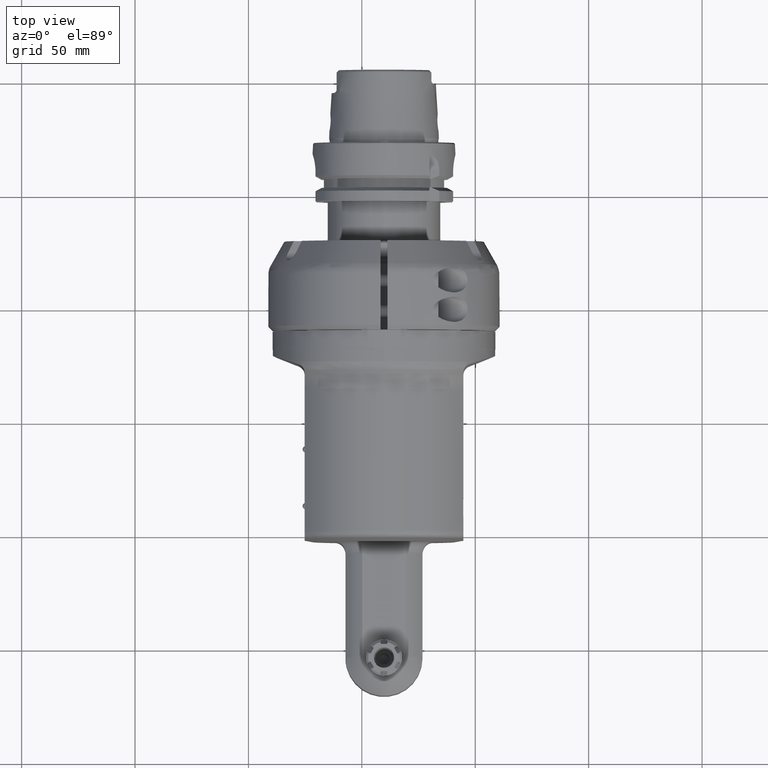
[diagram: clean part render]
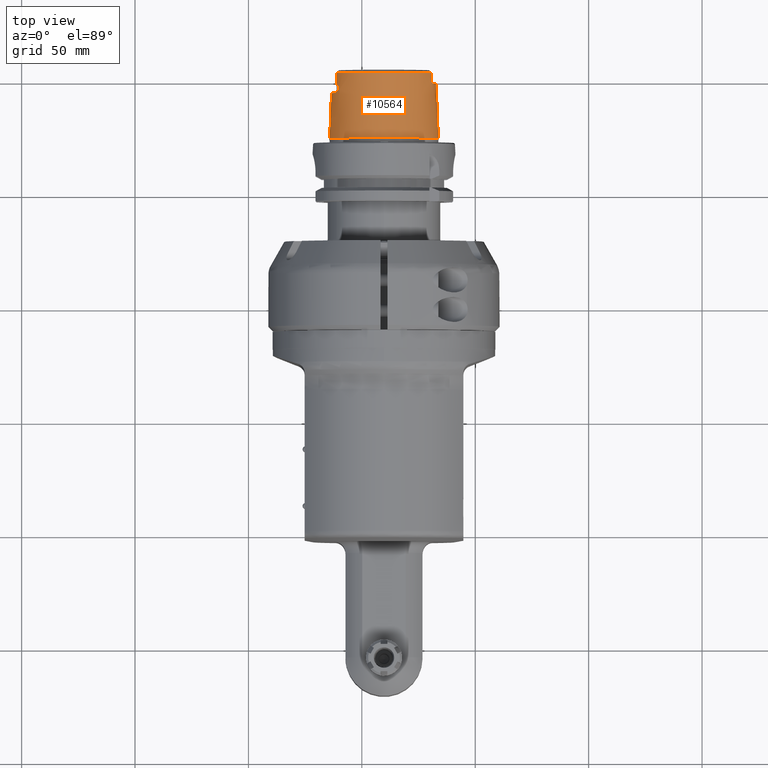
[diagram: same view with one face highlighted and labeled with its STEP entity id]
A machine part, top view. The second image highlights one B-rep face of the part: STEP entity #10564.
In plain terms, the highlighted conical surface has half-angle 2.868 deg.
Its self-contained STEP definition (entity closure, byte-faithful):
#113=CONICAL_SURFACE('',#11564,23.49739340079,0.0500570901447486);
#314=(
BOUNDED_CURVE()
B_SPLINE_CURVE(2,(#18491,#18492,#18493),.UNSPECIFIED.,.F.,.F.)
B_SPLINE_CURVE_WITH_KNOTS((3,3),(1.86693789051421,2.5252025093279),
 .UNSPECIFIED.)
CURVE()
GEOMETRIC_REPRESENTATION_ITEM()
RATIONAL_B_SPLINE_CURVE((1.02439092202946,1.02616919741191,1.02616919750134))
REPRESENTATION_ITEM('')
);
#315=(
BOUNDED_CURVE()
B_SPLINE_CURVE(2,(#18560,#18561,#18562),.UNSPECIFIED.,.F.,.F.)
B_SPLINE_CURVE_WITH_KNOTS((3,3),(2.52520257553613,3.18346719434885),
 .UNSPECIFIED.)
CURVE()
GEOMETRIC_REPRESENTATION_ITEM()
RATIONAL_B_SPLINE_CURVE((1.02616919750134,1.0261691974119,1.02439092202946))
REPRESENTATION_ITEM('')
);
#463=B_SPLINE_CURVE_WITH_KNOTS('',3,(#18420,#18421,#18422,#18423,#18424,
#18425,#18426,#18427),.UNSPECIFIED.,.F.,.F.,(4,2,2,4),(1.87852144760714,
1.96332966499537,2.14651647101209,2.20196364531662),.UNSPECIFIED.);
#464=B_SPLINE_CURVE_WITH_KNOTS('',3,(#18429,#18430,#18431,#18432,#18433,
#18434,#18435,#18436,#18437,#18438,#18439,#18440,#18441,#18442),
 .UNSPECIFIED.,.F.,.F.,(4,2,2,2,2,2,4),(0.648088302085378,0.67504823879193,
0.706405860352622,0.747031442334294,0.813706573923428,0.931756672705542,
0.968140813905552),.UNSPECIFIED.);
#465=B_SPLINE_CURVE_WITH_KNOTS('',3,(#18446,#18447,#18448,#18449,#18450,
#18451,#18452,#18453,#18454,#18455,#18456,#18457,#18458,#18459),
 .UNSPECIFIED.,.F.,.F.,(4,2,2,2,2,2,4),(0.250897982794745,0.32289928639896,
0.451677279406398,0.504038531696657,0.537850831835839,0.567600566613487,
0.5820221192563),.UNSPECIFIED.);
#466=B_SPLINE_CURVE_WITH_KNOTS('',3,(#18461,#18462,#18463,#18464,#18465,
#18466,#18467,#18468),.UNSPECIFIED.,.F.,.F.,(4,2,2,4),(1.04367366398559,
1.09912083762025,1.28230764389029,1.36711586171919),.UNSPECIFIED.);
#467=B_SPLINE_CURVE_WITH_KNOTS('',3,(#18472,#18473,#18474,#18475,#18476,
#18477,#18478,#18479,#18480,#18481,#18482,#18483,#18484,#18485,#18486,#18487,
#18488,#18489),.UNSPECIFIED.,.F.,.F.,(4,2,2,2,2,2,2,2,4),(1.62281865268316,
1.63031260903777,1.63780656539237,1.65279447810159,1.71646866782222,1.78014285754286,
1.96332966286606,2.14651646818926,2.20196364304312),.UNSPECIFIED.);
#468=B_SPLINE_CURVE_WITH_KNOTS('',3,(#18495,#18496,#18497,#18498,#18499,
#18500,#18501,#18502,#18503,#18504,#18505,#18506,#18507,#18508,#18509,#18510,
#18511,#18512,#18513),.UNSPECIFIED.,.F.,.F.,(4,2,2,2,2,2,3,2,4),(0.591686858486119,
0.711318405574479,0.753394480811399,0.769620085407919,0.779298074344639,
0.784137068813,0.78897606328136,0.793827590149413,0.796896752134967),
 .UNSPECIFIED.);
#469=B_SPLINE_CURVE_WITH_KNOTS('',3,(#18515,#18516,#18517,#18518,#18519,
#18520,#18521,#18522,#18523,#18524,#18525,#18526),.UNSPECIFIED.,.F.,.F.,
(4,2,2,2,2,4),(-1.35810253274609,-1.33001864997158,-1.27929112228705,-1.22120744000346,
-1.19655389716661,-1.18646391721583),.UNSPECIFIED.);
#470=B_SPLINE_CURVE_WITH_KNOTS('',3,(#18530,#18531,#18532,#18533,#18534,
#18535,#18536,#18537,#18538,#18539),.UNSPECIFIED.,.F.,.F.,(4,2,2,2,4),(-0.500911046831581,
-0.481998817135151,-0.442781745818096,-0.333902719664991,-0.278648797669768),
 .UNSPECIFIED.);
#471=B_SPLINE_CURVE_WITH_KNOTS('',3,(#18541,#18542,#18543,#18544,#18545,
#18546,#18547,#18548,#18549,#18550,#18551,#18552,#18553,#18554,#18555,#18556,
#18557,#18558),.UNSPECIFIED.,.F.,.F.,(4,2,2,2,2,2,2,2,4),(0.386476945536789,
0.389546107522341,0.394397634390394,0.399236628858755,0.404075623327115,
0.413753612263837,0.429979216860358,0.472055292097276,0.591686839185636),
 .UNSPECIFIED.);
#472=B_SPLINE_CURVE_WITH_KNOTS('',3,(#18564,#18565,#18566,#18567,#18568,
#18569,#18570,#18571,#18572,#18573,#18574,#18575,#18576,#18577,#18578,#18579,
#18580,#18581),.UNSPECIFIED.,.F.,.F.,(4,2,2,2,2,2,2,2,4),(1.04367366561104,
1.09912083861657,1.2823076446389,1.46549445066122,1.5291686406059,1.59284283055058,
1.60783074329144,1.61532469966187,1.6228186560323),.UNSPECIFIED.);
#473=B_SPLINE_CURVE_WITH_KNOTS('',3,(#18585,#18586,#18587,#18588,#18589,
#18590,#18591,#18592,#18593,#18594,#18595,#18596,#18597,#18598,#18599,#18600,
#18601,#18602,#18603),.UNSPECIFIED.,.F.,.F.,(4,2,2,2,3,2,2,2,4),(-0.56247523473426,
-0.421758779612593,-0.281042324490925,-0.140521162245463,0.,0.142680728235708,
0.285361456471416,0.427838019281762,0.570314582092107),.UNSPECIFIED.);
#474=B_SPLINE_CURVE_WITH_KNOTS('',3,(#18604,#18605,#18606,#18607,#18608,
#18609,#18610,#18611,#18612,#18613,#18614,#18615,#18616,#18617,#18618,#18619,
#18620,#18621),.UNSPECIFIED.,.F.,.F.,(4,2,2,2,2,2,2,2,4),(0.570314582092107,
0.712791144902453,0.855267707712798,0.997948435948506,1.14062916418421,
1.28115032642968,1.42167148867514,1.56238794379681,1.70310439891847),
 .UNSPECIFIED.);
#475=B_SPLINE_CURVE_WITH_KNOTS('',3,(#18623,#18624,#18625,#18626,#18627,
#18628,#18629,#18630,#18631,#18632,#18633,#18634,#18635,#18636,#18637,#18638,
#18639,#18640,#18641,#18642,#18643,#18644,#18645,#18646,#18647,#18648,#18649,
#18650,#18651,#18652,#18653,#18654,#18655,#18656),.UNSPECIFIED.,.T.,.F.,
(4,2,2,2,2,2,2,2,2,2,2,2,2,2,2,2,4),(-2.26557963365273,-2.12505847140727,
-1.98453730916181,-1.84382085404014,-1.70310439891847,-1.56238794379681,
-1.42167148867514,-1.28115032642968,-1.14062916418421,-0.997948435948507,
-0.855267707712798,-0.712791144902453,-0.570314582092107,-0.427838019281762,
-0.285361456471416,-0.142680728235708,0.),.UNSPECIFIED.);
#601=FACE_BOUND('',#2340,.T.);
#602=FACE_BOUND('',#2341,.T.);
#941=CIRCLE('',#11562,24.22021898401);
#942=CIRCLE('',#11563,24.22021898401);
#943=CIRCLE('',#11565,22.77456781756);
#944=CIRCLE('',#11566,23.01805084955);
#945=CIRCLE('',#11567,22.77456781756);
#946=CIRCLE('',#11568,23.21844661614);
#947=CIRCLE('',#11569,22.77456781756);
#1659=FACE_OUTER_BOUND('',#2339,.T.);
#2339=EDGE_LOOP('',(#8666,#8667,#8668,#8669,#8670,#8671,#8672,#8673,#8674,
#8675,#8676,#8677,#8678,#8679,#8680,#8681,#8682,#8683,#8684,#8685,#8686));
#2340=EDGE_LOOP('',(#8687,#8688));
#2341=EDGE_LOOP('',(#8689));
#3082=LINE('',#18416,#3812);
#3812=VECTOR('',#13870,23.49739340079);
#4747=VERTEX_POINT('',#18409);
#4748=VERTEX_POINT('',#18410);
#4749=VERTEX_POINT('',#18415);
#4750=VERTEX_POINT('',#18417);
#4751=VERTEX_POINT('',#18419);
#4752=VERTEX_POINT('',#18428);
#4753=VERTEX_POINT('',#18443);
#4754=VERTEX_POINT('',#18445);
#4755=VERTEX_POINT('',#18460);
#4756=VERTEX_POINT('',#18469);
#4757=VERTEX_POINT('',#18471);
#4758=VERTEX_POINT('',#18490);
#4759=VERTEX_POINT('',#18494);
#4760=VERTEX_POINT('',#18514);
#4761=VERTEX_POINT('',#18527);
#4762=VERTEX_POINT('',#18529);
#4763=VERTEX_POINT('',#18540);
#4764=VERTEX_POINT('',#18559);
#4765=VERTEX_POINT('',#18563);
#4766=VERTEX_POINT('',#18583);
#4767=VERTEX_POINT('',#18584);
#4768=VERTEX_POINT('',#18622);
#6117=EDGE_CURVE('',#4747,#4748,#941,.T.);
#6118=EDGE_CURVE('',#4748,#4747,#942,.T.);
#6120=EDGE_CURVE('',#4747,#4749,#3082,.T.);
#6121=EDGE_CURVE('',#4749,#4750,#943,.T.);
#6122=EDGE_CURVE('',#4751,#4750,#463,.T.);
#6123=EDGE_CURVE('',#4751,#4752,#464,.T.);
#6124=EDGE_CURVE('',#4753,#4752,#944,.T.);
#6125=EDGE_CURVE('',#4753,#4754,#465,.T.);
#6126=EDGE_CURVE('',#4755,#4754,#466,.T.);
#6127=EDGE_CURVE('',#4756,#4755,#945,.T.);
#6128=EDGE_CURVE('',#4757,#4756,#467,.T.);
#6129=EDGE_CURVE('',#4758,#4757,#314,.T.);
#6130=EDGE_CURVE('',#4759,#4758,#468,.T.);
#6131=EDGE_CURVE('',#4760,#4759,#469,.T.);
#6132=EDGE_CURVE('',#4761,#4760,#946,.T.);
#6133=EDGE_CURVE('',#4762,#4761,#470,.T.);
#6134=EDGE_CURVE('',#4763,#4762,#471,.T.);
#6135=EDGE_CURVE('',#4764,#4763,#315,.T.);
#6136=EDGE_CURVE('',#4765,#4764,#472,.T.);
#6137=EDGE_CURVE('',#4765,#4749,#947,.T.);
#6138=EDGE_CURVE('',#4766,#4767,#473,.T.);
#6139=EDGE_CURVE('',#4767,#4766,#474,.T.);
#6140=EDGE_CURVE('',#4768,#4768,#475,.T.);
#8666=ORIENTED_EDGE('',*,*,#6117,.T.);
#8667=ORIENTED_EDGE('',*,*,#6118,.T.);
#8668=ORIENTED_EDGE('',*,*,#6120,.T.);
#8669=ORIENTED_EDGE('',*,*,#6121,.T.);
#8670=ORIENTED_EDGE('',*,*,#6122,.F.);
#8671=ORIENTED_EDGE('',*,*,#6123,.T.);
#8672=ORIENTED_EDGE('',*,*,#6124,.F.);
#8673=ORIENTED_EDGE('',*,*,#6125,.T.);
#8674=ORIENTED_EDGE('',*,*,#6126,.F.);
#8675=ORIENTED_EDGE('',*,*,#6127,.F.);
#8676=ORIENTED_EDGE('',*,*,#6128,.F.);
#8677=ORIENTED_EDGE('',*,*,#6129,.F.);
#8678=ORIENTED_EDGE('',*,*,#6130,.F.);
#8679=ORIENTED_EDGE('',*,*,#6131,.F.);
#8680=ORIENTED_EDGE('',*,*,#6132,.F.);
#8681=ORIENTED_EDGE('',*,*,#6133,.F.);
#8682=ORIENTED_EDGE('',*,*,#6134,.F.);
#8683=ORIENTED_EDGE('',*,*,#6135,.F.);
#8684=ORIENTED_EDGE('',*,*,#6136,.F.);
#8685=ORIENTED_EDGE('',*,*,#6137,.T.);
#8686=ORIENTED_EDGE('',*,*,#6120,.F.);
#8687=ORIENTED_EDGE('',*,*,#6138,.T.);
#8688=ORIENTED_EDGE('',*,*,#6139,.T.);
#8689=ORIENTED_EDGE('',*,*,#6140,.T.);
#10564=ADVANCED_FACE('',(#1659,#601,#602),#113,.T.);
#11562=AXIS2_PLACEMENT_3D('',#18411,#13863,#13864);
#11563=AXIS2_PLACEMENT_3D('',#18412,#13865,#13866);
#11564=AXIS2_PLACEMENT_3D('',#18414,#13868,#13869);
#11565=AXIS2_PLACEMENT_3D('',#18418,#13871,#13872);
#11566=AXIS2_PLACEMENT_3D('',#18444,#13873,#13874);
#11567=AXIS2_PLACEMENT_3D('',#18470,#13875,#13876);
#11568=AXIS2_PLACEMENT_3D('',#18528,#13877,#13878);
#11569=AXIS2_PLACEMENT_3D('',#18582,#13879,#13880);
#13863=DIRECTION('center_axis',(0.,1.,0.));
#13864=DIRECTION('ref_axis',(-0.707106781186547,0.,-0.707106781186547));
#13865=DIRECTION('center_axis',(0.,1.,0.));
#13866=DIRECTION('ref_axis',(-0.707106781186547,0.,-0.707106781186547));
#13868=DIRECTION('center_axis',(0.,-1.,0.));
#13869=DIRECTION('ref_axis',(0.707106781186548,0.,0.707106781186548));
#13870=DIRECTION('',(0.0353809278297194,0.998747405449354,0.0353809278297194));
#13871=DIRECTION('center_axis',(0.,-1.,0.));
#13872=DIRECTION('ref_axis',(-0.707106781186547,0.,-0.707106781186547));
#13873=DIRECTION('center_axis',(0.,1.,0.));
#13874=DIRECTION('ref_axis',(0.950655672568357,0.,0.310247952795186));
#13875=DIRECTION('center_axis',(0.,1.,0.));
#13876=DIRECTION('ref_axis',(0.,0.,1.));
#13877=DIRECTION('center_axis',(0.,1.,0.));
#13878=DIRECTION('ref_axis',(-0.94780590928591,0.,-0.318847860778003));
#13879=DIRECTION('center_axis',(0.,-1.,0.));
#13880=DIRECTION('ref_axis',(-0.707106781186547,0.,-0.707106781186547));
#18409=CARTESIAN_POINT('',(-17.12628108542,85.00412114642,-17.12628108542));
#18410=CARTESIAN_POINT('',(17.1262810854204,85.0041211464186,17.1262810854204));
#18411=CARTESIAN_POINT('Origin',(1.347113091385E-14,85.00412114642,0.));
#18412=CARTESIAN_POINT('Origin',(1.347113091385E-14,85.00412114642,0.));
#18414=CARTESIAN_POINT('Origin',(1.347113091385E-14,99.432082286,0.));
#18415=CARTESIAN_POINT('',(-16.1040513423943,113.860043425581,-16.1040513423943));
#18416=CARTESIAN_POINT('',(-16.6151662139066,99.432082286,-16.6151662139066));
#18417=CARTESIAN_POINT('',(20.86981835535,113.86004342558,-9.117654363463));
#18418=CARTESIAN_POINT('Origin',(1.347113091385E-14,113.86004342558,0.));
#18419=CARTESIAN_POINT('',(20.83290092553,110.5,-9.610775788882));
#18420=CARTESIAN_POINT('Ctrl Pts',(20.8329009255283,110.500000000002,-9.61077578889373));
#18421=CARTESIAN_POINT('Ctrl Pts',(20.8413724806425,110.783490428274,-9.55850786932113));
#18422=CARTESIAN_POINT('Ctrl Pts',(20.8478073405863,111.070248202706,-9.50986699995181));
#18423=CARTESIAN_POINT('Ctrl Pts',(20.8638217744841,111.9851565585,-9.36366646758571));
#18424=CARTESIAN_POINT('Ctrl Pts',(20.8685085877053,112.623343076142,-9.27459532051356));
#18425=CARTESIAN_POINT('Ctrl Pts',(20.8700624475187,113.466127053925,-9.16631082824764));
#18426=CARTESIAN_POINT('Ctrl Pts',(20.8700887194267,113.662743462984,-9.14172559906327));
#18427=CARTESIAN_POINT('Ctrl Pts',(20.8698183553477,113.860043425581,-9.11765436347179));
#18428=CARTESIAN_POINT('',(21.88224061159,109.,-7.141303153407));
#18429=CARTESIAN_POINT('Ctrl Pts',(20.8329009255283,110.500000000002,-9.61077578889374));
#18430=CARTESIAN_POINT('Ctrl Pts',(20.8314489924963,110.451412803024,-9.61973394568025));
#18431=CARTESIAN_POINT('Ctrl Pts',(20.8336401790429,110.403310110275,-9.62073721834895));
#18432=CARTESIAN_POINT('Ctrl Pts',(20.8464278881812,110.298560865748,-9.60554521151347));
#18433=CARTESIAN_POINT('Ctrl Pts',(20.8578578636761,110.245706969117,-9.58707640182997));
#18434=CARTESIAN_POINT('Ctrl Pts',(20.8893183107881,110.132799684012,-9.53199317457096));
#18435=CARTESIAN_POINT('Ctrl Pts',(20.9150585072333,110.060268786847,-9.48448009125569));
#18436=CARTESIAN_POINT('Ctrl Pts',(21.0151373924235,109.838647872012,-9.28874691392544));
#18437=CARTESIAN_POINT('Ctrl Pts',(21.0971469157375,109.698710144837,-9.11993002449012));
#18438=CARTESIAN_POINT('Ctrl Pts',(21.3346001590644,109.352193060079,-8.60152235861784));
#18439=CARTESIAN_POINT('Ctrl Pts',(21.5309104117373,109.129495595536,-8.1402860872223));
#18440=CARTESIAN_POINT('Ctrl Pts',(21.77828244444,109.013086935923,-7.45228581516806));
#18441=CARTESIAN_POINT('Ctrl Pts',(21.8323572224781,109.,-7.29415485282921));
#18442=CARTESIAN_POINT('Ctrl Pts',(21.8822406115908,109.,-7.14130315340726));
#18443=CARTESIAN_POINT('',(21.88224061159,109.,7.141303153408));
#18444=CARTESIAN_POINT('Origin',(1.347113091385E-14,109.,0.));
#18445=CARTESIAN_POINT('',(20.83290092553,110.50000000001,9.610775788879));
#18446=CARTESIAN_POINT('Ctrl Pts',(21.8822406115905,109.,7.14130315340816));
#18447=CARTESIAN_POINT('Ctrl Pts',(21.7933640580373,109.,7.41363694008591));
#18448=CARTESIAN_POINT('Ctrl Pts',(21.6957996581471,109.041612162461,7.68824455746597));
#18449=CARTESIAN_POINT('Ctrl Pts',(21.409444593117,109.255793077105,8.43441100564512));
#18450=CARTESIAN_POINT('Ctrl Pts',(21.2243799959674,109.495523502604,8.84932399272184));
#18451=CARTESIAN_POINT('Ctrl Pts',(21.0365866986543,109.806237291123,9.24395926600556));
#18452=CARTESIAN_POINT('Ctrl Pts',(20.9761032068554,109.916630584019,9.36659326279732));
#18453=CARTESIAN_POINT('Ctrl Pts',(20.8950552401853,110.114619990408,9.52178759584923));
#18454=CARTESIAN_POINT('Ctrl Pts',(20.8739760220774,110.182079648045,9.55958934574004));
#18455=CARTESIAN_POINT('Ctrl Pts',(20.8472940080879,110.295275231779,9.60408350993952));
#18456=CARTESIAN_POINT('Ctrl Pts',(20.8380106848695,110.351677199847,9.61743794135666));
#18457=CARTESIAN_POINT('Ctrl Pts',(20.8324598638865,110.441732781479,9.61869765129533));
#18458=CARTESIAN_POINT('Ctrl Pts',(20.8320321566572,110.470927692037,9.61613593125914));
#18459=CARTESIAN_POINT('Ctrl Pts',(20.8329009255286,110.500000000012,9.61077578889186));
#18460=CARTESIAN_POINT('',(20.86981835535,113.86004342558,9.117654363463));
#18461=CARTESIAN_POINT('Ctrl Pts',(20.8698183553477,113.860043425581,9.11765436347179));
#18462=CARTESIAN_POINT('Ctrl Pts',(20.8700887194234,113.662743465383,9.1417255987706));
#18463=CARTESIAN_POINT('Ctrl Pts',(20.8700624475193,113.466127058706,9.16631082764981));
#18464=CARTESIAN_POINT('Ctrl Pts',(20.8685085877441,112.62334308238,9.27459531965703));
#18465=CARTESIAN_POINT('Ctrl Pts',(20.8638217745454,111.985156563843,9.36366646679598));
#18466=CARTESIAN_POINT('Ctrl Pts',(20.8478073406529,111.070248205658,9.50986699945028));
#18467=CARTESIAN_POINT('Ctrl Pts',(20.8413724806862,110.78349042974,9.55850786905096));
#18468=CARTESIAN_POINT('Ctrl Pts',(20.8329009255286,110.500000000012,9.61077578889186));
#18469=CARTESIAN_POINT('',(-20.86981835533,113.86004342558,9.117654363498));
#18470=CARTESIAN_POINT('Origin',(1.347113091385E-14,113.86004342558,0.));
#18471=CARTESIAN_POINT('',(-20.55704259638,108.09828716012,10.45563865919));
#18472=CARTESIAN_POINT('Ctrl Pts',(-20.5570425901344,108.098287160182,10.4556386714692));
#18473=CARTESIAN_POINT('Ctrl Pts',(-20.5683671261878,108.098287162269,10.433373271905));
#18474=CARTESIAN_POINT('Ctrl Pts',(-20.5788186542378,108.103942557601,10.4121101512896));
#18475=CARTESIAN_POINT('Ctrl Pts',(-20.5981622584297,108.123292714809,10.3716348829625));
#18476=CARTESIAN_POINT('Ctrl Pts',(-20.6070594656734,108.13696673309,10.3524152746639));
#18477=CARTESIAN_POINT('Ctrl Pts',(-20.6315611276163,108.185669135694,10.2980927518617));
#18478=CARTESIAN_POINT('Ctrl Pts',(-20.6450434356398,108.22812725655,10.2662245706467));
#18479=CARTESIAN_POINT('Ctrl Pts',(-20.7016700091883,108.443440630208,10.1277106806721));
#18480=CARTESIAN_POINT('Ctrl Pts',(-20.7253784620132,108.658216249338,10.0539998399404));
#18481=CARTESIAN_POINT('Ctrl Pts',(-20.7668254275143,109.096251093511,9.91728957146815));
#18482=CARTESIAN_POINT('Ctrl Pts',(-20.7815789717773,109.321519834535,9.85990522650072));
#18483=CARTESIAN_POINT('Ctrl Pts',(-20.8259087989342,110.121432468118,9.67204980871616));
#18484=CARTESIAN_POINT('Ctrl Pts',(-20.8419285842928,110.734393481968,9.56353591522435));
#18485=CARTESIAN_POINT('Ctrl Pts',(-20.8638217744216,111.985156553064,9.36366646838923));
#18486=CARTESIAN_POINT('Ctrl Pts',(-20.8685085876657,112.623343069794,9.27459532138512));
#18487=CARTESIAN_POINT('Ctrl Pts',(-20.8700624475181,113.466127049058,9.16631082885614));
#18488=CARTESIAN_POINT('Ctrl Pts',(-20.87008871943,113.66274346054,9.14172559936143));
#18489=CARTESIAN_POINT('Ctrl Pts',(-20.8698183553477,113.860043425577,9.11765436347232));
#18490=CARTESIAN_POINT('',(-19.685027866,106.5,12.17012447178));
#18491=CARTESIAN_POINT('Ctrl Pts',(-19.6850278659878,106.500000000015,12.1701244718009));
#18492=CARTESIAN_POINT('Ctrl Pts',(-20.1217907997496,108.098287079941,11.3113960268442));
#18493=CARTESIAN_POINT('Ctrl Pts',(-20.5570425963522,108.098287160179,10.4556386592447));
#18494=CARTESIAN_POINT('',(-20.65337930986,105.94092683567,10.50463704262));
#18495=CARTESIAN_POINT('Ctrl Pts',(-20.6533793536115,105.940926835661,10.5046369566053));
#18496=CARTESIAN_POINT('Ctrl Pts',(-20.4725974305277,105.940926840385,10.8600759507545));
#18497=CARTESIAN_POINT('Ctrl Pts',(-20.2429928414844,105.972474551644,11.2787331001345));
#18498=CARTESIAN_POINT('Ctrl Pts',(-19.9736961951904,106.082759225235,11.7324566113102));
#18499=CARTESIAN_POINT('Ctrl Pts',(-19.8889135428888,106.125901829798,11.8712980961836));
#18500=CARTESIAN_POINT('Ctrl Pts',(-19.7935089562315,106.203861223558,12.0215908841504));
#18501=CARTESIAN_POINT('Ctrl Pts',(-19.7622825990608,106.233836663465,12.0699511150093));
#18502=CARTESIAN_POINT('Ctrl Pts',(-19.7237601065718,106.28500932448,12.1278552591121));
#18503=CARTESIAN_POINT('Ctrl Pts',(-19.7088419471517,106.308455418183,12.1498329028668));
#18504=CARTESIAN_POINT('Ctrl Pts',(-19.691608797045,106.348940865035,12.1738756749758));
#18505=CARTESIAN_POINT('Ctrl Pts',(-19.686685553039,106.363297386325,12.1804656176304));
#18506=CARTESIAN_POINT('Ctrl Pts',(-19.6794566962154,106.393381877848,12.189279508972));
#18507=CARTESIAN_POINT('Ctrl Pts',(-19.6771391685607,106.409101013146,12.1915238238229));
#18508=CARTESIAN_POINT('Ctrl Pts',(-19.6764530970834,106.425210791138,12.1910987489841));
#18509=CARTESIAN_POINT('Ctrl Pts',(-19.6757652487654,106.44136229147,12.1906725732538));
#18510=CARTESIAN_POINT('Ctrl Pts',(-19.6767494293032,106.457121314436,12.1875860130507));
#18511=CARTESIAN_POINT('Ctrl Pts',(-19.6805617300192,106.481758273672,12.1790827163535));
#18512=CARTESIAN_POINT('Ctrl Pts',(-19.6825792075815,106.491039397354,12.1749388286616));
#18513=CARTESIAN_POINT('Ctrl Pts',(-19.6850278659941,106.500000000008,12.1701244717914));
#18514=CARTESIAN_POINT('',(-22.00658090721,105.,7.403152034143));
#18515=CARTESIAN_POINT('Ctrl Pts',(-22.0065809072154,105.,7.4031520341448));
#18516=CARTESIAN_POINT('Ctrl Pts',(-21.9446354867472,105.,7.58729074979955));
#18517=CARTESIAN_POINT('Ctrl Pts',(-21.8700373454034,105.016951499018,7.79894073569062));
#18518=CARTESIAN_POINT('Ctrl Pts',(-21.6158859211317,105.146590962573,8.46885044146755));
#18519=CARTESIAN_POINT('Ctrl Pts',(-21.4523054246618,105.297773516392,8.84986186883586));
#18520=CARTESIAN_POINT('Ctrl Pts',(-21.1477208781622,105.599309719733,9.52003982973984));
#18521=CARTESIAN_POINT('Ctrl Pts',(-21.0011530218963,105.760525851965,9.816480940296));
#18522=CARTESIAN_POINT('Ctrl Pts',(-20.8163823818215,105.894105083438,10.1838806620518));
#18523=CARTESIAN_POINT('Ctrl Pts',(-20.7653534048569,105.921061633791,10.2843617168617));
#18524=CARTESIAN_POINT('Ctrl Pts',(-20.6942562737177,105.938392606277,10.4242598914347));
#18525=CARTESIAN_POINT('Ctrl Pts',(-20.6738427993982,105.940926835122,10.4644033621003));
#18526=CARTESIAN_POINT('Ctrl Pts',(-20.6533793098626,105.940926835656,10.5046370426213));
#18527=CARTESIAN_POINT('',(-22.00658090721,105.,-7.403152034143));
#18528=CARTESIAN_POINT('Origin',(1.347113091385E-14,105.,0.));
#18529=CARTESIAN_POINT('',(-20.65337930986,105.94092683567,-10.50463704262));
#18530=CARTESIAN_POINT('Ctrl Pts',(-20.6533793098626,105.940926835656,-10.5046370426213));
#18531=CARTESIAN_POINT('Ctrl Pts',(-20.6847919576156,105.940926834835,-10.4428760007516));
#18532=CARTESIAN_POINT('Ctrl Pts',(-20.7158427666053,105.934945219954,-10.3818148893931));
#18533=CARTESIAN_POINT('Ctrl Pts',(-20.8128316240174,105.899659003094,-10.1907910100508));
#18534=CARTESIAN_POINT('Ctrl Pts',(-20.8800772428557,105.852455114751,-10.0580924634214));
#18535=CARTESIAN_POINT('Ctrl Pts',(-21.1610245006451,105.607768514179,-9.49261363253437));
#18536=CARTESIAN_POINT('Ctrl Pts',(-21.4217726730621,105.290002036225,-8.94733733032288));
#18537=CARTESIAN_POINT('Ctrl Pts',(-21.8234662449697,105.028230617779,-7.93109170591475));
#18538=CARTESIAN_POINT('Ctrl Pts',(-21.9263762672941,105.,-7.64156803444037));
#18539=CARTESIAN_POINT('Ctrl Pts',(-22.0065809072154,105.,-7.4031520341448));
#18540=CARTESIAN_POINT('',(-19.685027866,106.5,-12.17012447178));
#18541=CARTESIAN_POINT('Ctrl Pts',(-19.6850278659941,106.500000000008,-12.1701244717913));
#18542=CARTESIAN_POINT('Ctrl Pts',(-19.6825792075815,106.491039397354,-12.1749388286616));
#18543=CARTESIAN_POINT('Ctrl Pts',(-19.6805617300192,106.481758273672,-12.1790827163535));
#18544=CARTESIAN_POINT('Ctrl Pts',(-19.6767494293032,106.457121314436,-12.1875860130507));
#18545=CARTESIAN_POINT('Ctrl Pts',(-19.6757652487654,106.44136229147,-12.1906725732538));
#18546=CARTESIAN_POINT('Ctrl Pts',(-19.6771391685607,106.409101013146,-12.1915238238229));
#18547=CARTESIAN_POINT('Ctrl Pts',(-19.6794566962155,106.393381877848,-12.189279508972));
#18548=CARTESIAN_POINT('Ctrl Pts',(-19.686685553039,106.363297386325,-12.1804656176304));
#18549=CARTESIAN_POINT('Ctrl Pts',(-19.691608797045,106.348940865035,-12.1738756749759));
#18550=CARTESIAN_POINT('Ctrl Pts',(-19.7088419471517,106.308455418183,-12.1498329028668));
#18551=CARTESIAN_POINT('Ctrl Pts',(-19.7237601065718,106.28500932448,-12.127855259112));
#18552=CARTESIAN_POINT('Ctrl Pts',(-19.7622825990608,106.233836663465,-12.0699511150093));
#18553=CARTESIAN_POINT('Ctrl Pts',(-19.7935089562315,106.203861223558,-12.0215908841504));
#18554=CARTESIAN_POINT('Ctrl Pts',(-19.8889135428888,106.125901829798,-11.8712980961836));
#18555=CARTESIAN_POINT('Ctrl Pts',(-19.9736961951904,106.082759225235,-11.7324566113102));
#18556=CARTESIAN_POINT('Ctrl Pts',(-20.2429928414844,105.972474551644,-11.2787331001345));
#18557=CARTESIAN_POINT('Ctrl Pts',(-20.472597432219,105.940926835661,-10.8600759516147));
#18558=CARTESIAN_POINT('Ctrl Pts',(-20.6533793536115,105.940926835661,-10.5046369566053));
#18559=CARTESIAN_POINT('',(-20.55704259638,108.09828716012,-10.45563865919));
#18560=CARTESIAN_POINT('Ctrl Pts',(-20.5570425963509,108.098287160179,-10.4556386592471));
#18561=CARTESIAN_POINT('Ctrl Pts',(-20.121790799749,108.098287079939,-11.3113960268454));
#18562=CARTESIAN_POINT('Ctrl Pts',(-19.6850278659878,106.500000000015,-12.1701244718009));
#18563=CARTESIAN_POINT('',(-20.86981835535,113.86004342558,-9.117654363463));
#18564=CARTESIAN_POINT('Ctrl Pts',(-20.8698183553477,113.860043425581,-9.1176543634718));
#18565=CARTESIAN_POINT('Ctrl Pts',(-20.8700887194209,113.662743467163,-9.14172559855336));
#18566=CARTESIAN_POINT('Ctrl Pts',(-20.8700624475197,113.466127062256,-9.16631082720605));
#18567=CARTESIAN_POINT('Ctrl Pts',(-20.8685085877729,112.62334308701,-9.27459531902123));
#18568=CARTESIAN_POINT('Ctrl Pts',(-20.8638217745908,111.985156567809,-9.36366646620984));
#18569=CARTESIAN_POINT('Ctrl Pts',(-20.8419285845549,110.73439349186,-9.56353591346666));
#18570=CARTESIAN_POINT('Ctrl Pts',(-20.8259087992307,110.121432475627,-9.67204980718885));
#18571=CARTESIAN_POINT('Ctrl Pts',(-20.7815789720648,109.321519838973,-9.85990522537639));
#18572=CARTESIAN_POINT('Ctrl Pts',(-20.7668254277979,109.09625109713,-9.91728957045448));
#18573=CARTESIAN_POINT('Ctrl Pts',(-20.7253784622613,108.658216251336,-10.0539998392007));
#18574=CARTESIAN_POINT('Ctrl Pts',(-20.7016700094214,108.443440631395,-10.127710680064));
#18575=CARTESIAN_POINT('Ctrl Pts',(-20.6450434357602,108.228127256937,-10.266224570361));
#18576=CARTESIAN_POINT('Ctrl Pts',(-20.6315611277239,108.185669135968,-10.2980927516157));
#18577=CARTESIAN_POINT('Ctrl Pts',(-20.6070594657535,108.136966733219,-10.3524152744901));
#18578=CARTESIAN_POINT('Ctrl Pts',(-20.5981622584988,108.123292714897,-10.3716348828157));
#18579=CARTESIAN_POINT('Ctrl Pts',(-20.5788186542789,108.103942557623,-10.4121101512061));
#18580=CARTESIAN_POINT('Ctrl Pts',(-20.5683671263183,108.098287160182,-10.4333732719121));
#18581=CARTESIAN_POINT('Ctrl Pts',(-20.5570425901344,108.098287160182,-10.4556386714692));
#18582=CARTESIAN_POINT('Origin',(1.347113091385E-14,113.86004342558,0.));
#18583=CARTESIAN_POINT('',(-23.68186182637,95.75,0.));
#18584=CARTESIAN_POINT('',(-24.0576038887331,88.25,4.59242549680257E-16));
#18585=CARTESIAN_POINT('Ctrl Pts',(-23.6818618263774,95.75,-9.71445146547012E-16));
#18586=CARTESIAN_POINT('Ctrl Pts',(-23.6818618263774,95.75,0.469054850405556));
#18587=CARTESIAN_POINT('Ctrl Pts',(-23.6711804503687,95.6566215303589,0.969264895238196));
#18588=CARTESIAN_POINT('Ctrl Pts',(-23.6345973217103,95.277053954328,1.88978114724752));
#18589=CARTESIAN_POINT('Ctrl Pts',(-23.6094750319828,94.9908863561182,2.31012703498402));
#18590=CARTESIAN_POINT('Ctrl Pts',(-23.5683046058624,94.3309014900085,2.97462220634907));
#18591=CARTESIAN_POINT('Ctrl Pts',(-23.5496143871783,93.9129130783974,3.2635247030736));
#18592=CARTESIAN_POINT('Ctrl Pts',(-23.5393999048604,92.9961356810231,3.64932097112701));
#18593=CARTESIAN_POINT('Ctrl Pts',(-23.5487000186238,92.4973322043523,3.74620169322924));
#18594=CARTESIAN_POINT('Ctrl Pts',(-23.5718461085892,92.029515050341,3.74988384644156));
#18595=CARTESIAN_POINT('Ctrl Pts',(-23.5953479137215,91.5545083598975,3.75362258794793));
#18596=CARTESIAN_POINT('Ctrl Pts',(-23.636207974791,91.0486113203454,3.66191293850585));
#18597=CARTESIAN_POINT('Ctrl Pts',(-23.738916568537,90.1185366250423,3.28250562870907));
#18598=CARTESIAN_POINT('Ctrl Pts',(-23.7999226154427,89.6942405861678,2.99487058324756));
#18599=CARTESIAN_POINT('Ctrl Pts',(-23.9079449341569,89.0238500581351,2.32973588252695));
#18600=CARTESIAN_POINT('Ctrl Pts',(-23.9620973119612,88.7326842310968,1.90776874445894));
#18601=CARTESIAN_POINT('Ctrl Pts',(-24.0373189681924,88.3457239031291,0.98040819673589));
#18602=CARTESIAN_POINT('Ctrl Pts',(-24.0576038887331,88.25,0.474921876034486));
#18603=CARTESIAN_POINT('Ctrl Pts',(-24.0576038887331,88.25,1.11022302462516E-15));
#18604=CARTESIAN_POINT('Ctrl Pts',(-24.0576038887331,88.25,-2.77555756156289E-16));
#18605=CARTESIAN_POINT('Ctrl Pts',(-24.0576038887331,88.25,-0.474921876034485));
#18606=CARTESIAN_POINT('Ctrl Pts',(-24.0373189681924,88.3457239031291,-0.980408196735887));
#18607=CARTESIAN_POINT('Ctrl Pts',(-23.9620973119612,88.7326842310968,-1.90776874445894));
#18608=CARTESIAN_POINT('Ctrl Pts',(-23.9079449341569,89.0238500581351,-2.32973588252695));
#18609=CARTESIAN_POINT('Ctrl Pts',(-23.7999226154427,89.6942405861678,-2.99487058324756));
#18610=CARTESIAN_POINT('Ctrl Pts',(-23.738916568537,90.1185366250423,-3.28250562870908));
#18611=CARTESIAN_POINT('Ctrl Pts',(-23.636207974791,91.0486113203454,-3.66191293850586));
#18612=CARTESIAN_POINT('Ctrl Pts',(-23.5953479137215,91.5545083598975,-3.75362258794793));
#18613=CARTESIAN_POINT('Ctrl Pts',(-23.5487000186238,92.4973322043523,-3.74620169322924));
#18614=CARTESIAN_POINT('Ctrl Pts',(-23.5393999048604,92.9961356810231,-3.64932097112701));
#18615=CARTESIAN_POINT('Ctrl Pts',(-23.5496143871783,93.9129130783974,-3.2635247030736));
#18616=CARTESIAN_POINT('Ctrl Pts',(-23.5683046058624,94.3309014900085,-2.97462220634907));
#18617=CARTESIAN_POINT('Ctrl Pts',(-23.6094750319828,94.9908863561182,-2.31012703498402));
#18618=CARTESIAN_POINT('Ctrl Pts',(-23.6345973217103,95.277053954328,-1.88978114724752));
#18619=CARTESIAN_POINT('Ctrl Pts',(-23.6711804503687,95.6566215303589,-0.9692648952382));
#18620=CARTESIAN_POINT('Ctrl Pts',(-23.6818618263774,95.75,-0.469054850405557));
#18621=CARTESIAN_POINT('Ctrl Pts',(-23.6818618263774,95.75,-4.16333634234434E-16));
#18622=CARTESIAN_POINT('',(24.05760388874,88.24999999999,0.));
#18623=CARTESIAN_POINT('Ctrl Pts',(23.5718461085892,92.029515050341,3.74988384644156));
#18624=CARTESIAN_POINT('Ctrl Pts',(23.5487000186239,92.4973322043523,3.74620169322924));
#18625=CARTESIAN_POINT('Ctrl Pts',(23.5393999048604,92.9961356810231,3.64932097112701));
#18626=CARTESIAN_POINT('Ctrl Pts',(23.5496143871783,93.9129130783974,3.26352470307359));
#18627=CARTESIAN_POINT('Ctrl Pts',(23.5683046058624,94.3309014900085,2.97462220634907));
#18628=CARTESIAN_POINT('Ctrl Pts',(23.6094750319828,94.9908863561182,2.31012703498402));
#18629=CARTESIAN_POINT('Ctrl Pts',(23.6345973217103,95.277053954328,1.88978114724752));
#18630=CARTESIAN_POINT('Ctrl Pts',(23.6711804503688,95.6566215303589,0.969264895238196));
#18631=CARTESIAN_POINT('Ctrl Pts',(23.6818618263774,95.75,0.469054850405556));
#18632=CARTESIAN_POINT('Ctrl Pts',(23.6818618263774,95.75,-0.469054850405558));
#18633=CARTESIAN_POINT('Ctrl Pts',(23.6711804503688,95.6566215303589,-0.969264895238197));
#18634=CARTESIAN_POINT('Ctrl Pts',(23.6345973217103,95.277053954328,-1.88978114724752));
#18635=CARTESIAN_POINT('Ctrl Pts',(23.6094750319828,94.9908863561182,-2.31012703498402));
#18636=CARTESIAN_POINT('Ctrl Pts',(23.5683046058624,94.3309014900085,-2.97462220634907));
#18637=CARTESIAN_POINT('Ctrl Pts',(23.5496143871783,93.9129130783974,-3.2635247030736));
#18638=CARTESIAN_POINT('Ctrl Pts',(23.5393999048604,92.9961356810231,-3.64932097112701));
#18639=CARTESIAN_POINT('Ctrl Pts',(23.5487000186239,92.4973322043523,-3.74620169322924));
#18640=CARTESIAN_POINT('Ctrl Pts',(23.5953479137215,91.5545083598975,-3.75362258794793));
#18641=CARTESIAN_POINT('Ctrl Pts',(23.6362079747911,91.0486113203454,-3.66191293850585));
#18642=CARTESIAN_POINT('Ctrl Pts',(23.738916568537,90.1185366250423,-3.28250562870908));
#18643=CARTESIAN_POINT('Ctrl Pts',(23.7999226154427,89.6942405861678,-2.99487058324756));
#18644=CARTESIAN_POINT('Ctrl Pts',(23.9079449341569,89.0238500581351,-2.32973588252695));
#18645=CARTESIAN_POINT('Ctrl Pts',(23.9620973119612,88.7326842310968,-1.90776874445894));
#18646=CARTESIAN_POINT('Ctrl Pts',(24.0373189681924,88.3457239031291,-0.980408196735887));
#18647=CARTESIAN_POINT('Ctrl Pts',(24.0576038887331,88.25,-0.474921876034485));
#18648=CARTESIAN_POINT('Ctrl Pts',(24.0576038887331,88.25,0.474921876034485));
#18649=CARTESIAN_POINT('Ctrl Pts',(24.0373189681924,88.3457239031291,0.980408196735889));
#18650=CARTESIAN_POINT('Ctrl Pts',(23.9620973119612,88.7326842310968,1.90776874445894));
#18651=CARTESIAN_POINT('Ctrl Pts',(23.9079449341569,89.0238500581351,2.32973588252695));
#18652=CARTESIAN_POINT('Ctrl Pts',(23.7999226154427,89.6942405861678,2.99487058324756));
#18653=CARTESIAN_POINT('Ctrl Pts',(23.738916568537,90.1185366250423,3.28250562870908));
#18654=CARTESIAN_POINT('Ctrl Pts',(23.6362079747911,91.0486113203454,3.66191293850585));
#18655=CARTESIAN_POINT('Ctrl Pts',(23.5953479137215,91.5545083598975,3.75362258794793));
#18656=CARTESIAN_POINT('Ctrl Pts',(23.5718461085892,92.029515050341,3.74988384644156));